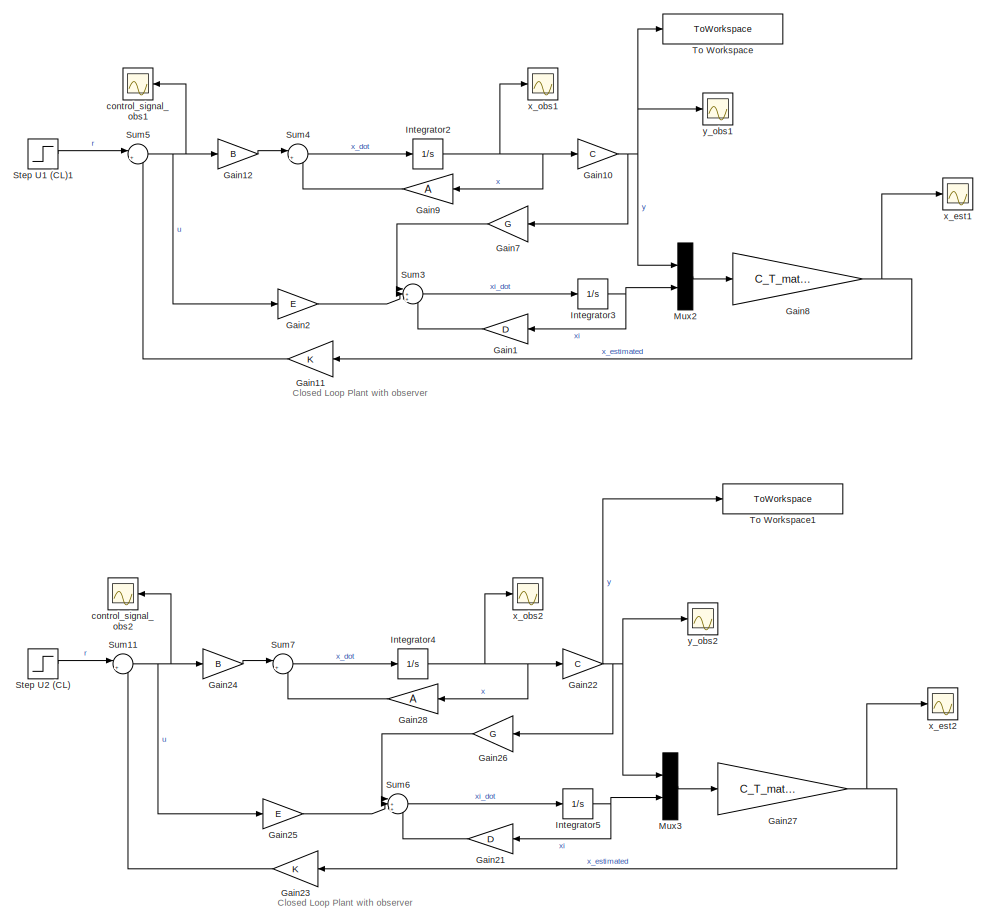
[diagram: root canvas - part 1/2, full width, top band]
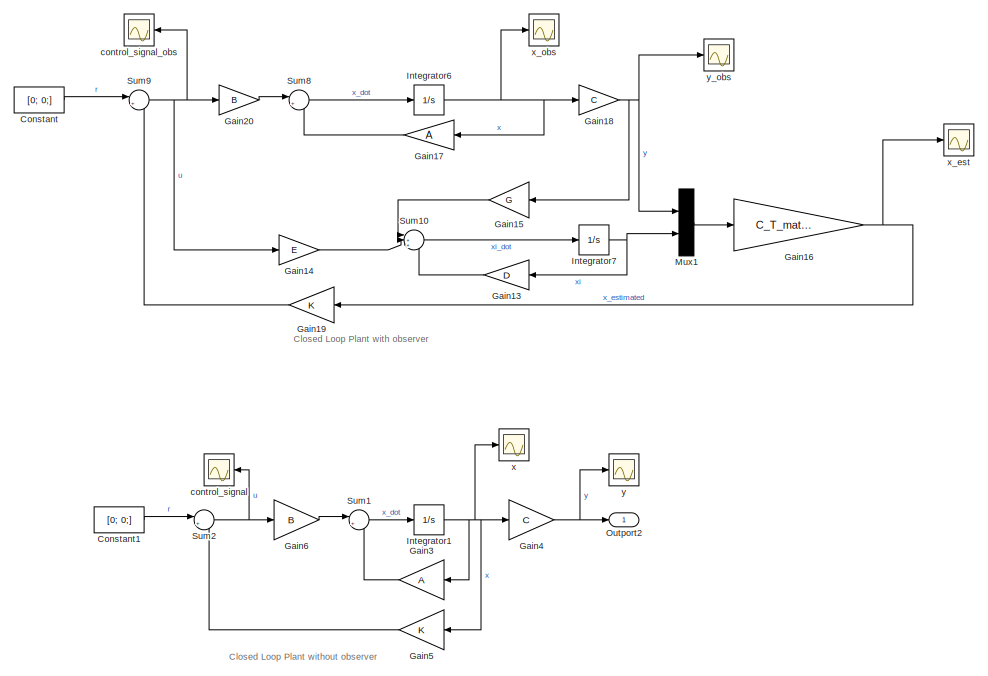
[diagram: root canvas - part 2/2, full width, bottom band]
MODEL slx_fd762015afdd
KIND model
CONFIG AbsTol = auto
CONFIG EnableMultiTasking = off
CONFIG FixedStep = auto
CONFIG MaxStep = auto
CONFIG MinStep = auto
CONFIG RelTol = 1e-3
CONFIG SampleTimeConstraint = Unconstrained
CONFIG SolverName = VariableStepAuto
CONFIG StartTime = 0.0
CONFIG StopTime = 5
BLOCK [Constant] Constant
  Value = [0; 0;]
BLOCK [Constant] Constant1
  Value = [0; 0;]
BLOCK [Gain] Gain1
  Gain = D
  Multiplication = Matrix(K*u)
BLOCK [Gain] Gain10
  Gain = C
  Multiplication = Matrix(K*u)
BLOCK [Gain] Gain11
  Gain = K
  Multiplication = Matrix(K*u)
BLOCK [Gain] Gain12
  Gain = B
  Multiplication = Matrix(K*u)
BLOCK [Gain] Gain13
  Gain = D
  Multiplication = Matrix(K*u)
BLOCK [Gain] Gain14
  Gain = E
  Multiplication = Matrix(K*u)
BLOCK [Gain] Gain15
  Gain = G
  Multiplication = Matrix(K*u)
  NameLocation = top
BLOCK [Gain] Gain16
  Gain = C_T_matrix_inv
  Multiplication = Matrix(K*u)
BLOCK [Gain] Gain17
  Gain = A
  Multiplication = Matrix(K*u)
BLOCK [Gain] Gain18
  Gain = C
  Multiplication = Matrix(K*u)
BLOCK [Gain] Gain19
  Gain = K
  Multiplication = Matrix(K*u)
BLOCK [Gain] Gain2
  Gain = E
  Multiplication = Matrix(K*u)
BLOCK [Gain] Gain20
  Gain = B
  Multiplication = Matrix(K*u)
BLOCK [Gain] Gain21
  Gain = D
  Multiplication = Matrix(K*u)
BLOCK [Gain] Gain22
  Gain = C
  Multiplication = Matrix(K*u)
BLOCK [Gain] Gain23
  Gain = K
  Multiplication = Matrix(K*u)
BLOCK [Gain] Gain24
  Gain = B
  Multiplication = Matrix(K*u)
BLOCK [Gain] Gain25
  Gain = E
  Multiplication = Matrix(K*u)
BLOCK [Gain] Gain26
  Gain = G
  Multiplication = Matrix(K*u)
  NameLocation = top
BLOCK [Gain] Gain27
  Gain = C_T_matrix_inv
  Multiplication = Matrix(K*u)
BLOCK [Gain] Gain28
  Gain = A
  Multiplication = Matrix(K*u)
BLOCK [Gain] Gain3
  Gain = A
  Multiplication = Matrix(K*u)
BLOCK [Gain] Gain4
  Gain = C
  Multiplication = Matrix(K*u)
BLOCK [Gain] Gain5
  Gain = K
  Multiplication = Matrix(K*u)
BLOCK [Gain] Gain6
  Gain = B
  Multiplication = Matrix(K*u)
BLOCK [Gain] Gain7
  Gain = G
  Multiplication = Matrix(K*u)
  NameLocation = top
BLOCK [Gain] Gain8
  Gain = C_T_matrix_inv
  Multiplication = Matrix(K*u)
BLOCK [Gain] Gain9
  Gain = A
  Multiplication = Matrix(K*u)
BLOCK [Integrator] Integrator1
  InitialCondition = x_0
BLOCK [Integrator] Integrator2
BLOCK [Integrator] Integrator3
BLOCK [Integrator] Integrator4
BLOCK [Integrator] Integrator5
BLOCK [Integrator] Integrator6
  InitialCondition = x_0
BLOCK [Integrator] Integrator7
BLOCK [Mux] Mux1
  DisplayOption = signals
  Inputs = 2
BLOCK [Mux] Mux2
  DisplayOption = signals
  Inputs = 2
BLOCK [Mux] Mux3
  DisplayOption = signals
  Inputs = 2
BLOCK [Outport] Outport2
BLOCK [Step] Step U1 (CL)1
  After = [1; 0;];
  Before = [0; 0;];
  SampleTime = 0
  Time = 0
BLOCK [Step] Step U2 (CL)
  After = [0; 1;];
  Before = [0; 0;];
  SampleTime = 0
  Time = 0
BLOCK [Sum] Sum1
  Inputs = |++
BLOCK [Sum] Sum10
  Inputs = |+++
BLOCK [Sum] Sum11
  Inputs = |+-
BLOCK [Sum] Sum2
  Inputs = |+-
BLOCK [Sum] Sum3
  Inputs = |+++
BLOCK [Sum] Sum4
  Inputs = |++
BLOCK [Sum] Sum5
  Inputs = |+-
BLOCK [Sum] Sum6
  Inputs = |+++
BLOCK [Sum] Sum7
  Inputs = |++
BLOCK [Sum] Sum8
  Inputs = |++
BLOCK [Sum] Sum9
  Inputs = |+-
BLOCK [ToWorkspace] To Workspace
  FixptAsFi = on
  MaxDataPoints = inf
  SampleTime = -1
  SaveFormat = Timeseries
  VariableName = setpoint_response_u1
BLOCK [ToWorkspace] To Workspace1
  FixptAsFi = on
  MaxDataPoints = inf
  SampleTime = -1
  SaveFormat = Timeseries
  VariableName = setpoint_response_u2
BLOCK [Scope] control_signal
  Floating = off
  NumInputPorts = 1
  ScopeSpecificationString = Simulink.scopes.TimeScopeBlockCfg('CurrentConfiguration', extmgr.ConfigurationSet(extmgr.Configuration('Core','General UI',true),extmgr.Configuration('Core','Source UI',true),extmgr.Configuration('Sources','WiredSimulink',true),extmgr.Configuration('Visuals','Time Domain',true,'SerializedDisplays',{struct('MinYLimReal','-0.44033','MaxYLimReal','1.233','YLabelReal','','MinYLimMag','0.00000','MaxYLi...<+1364ch>
BLOCK [Scope] control_signal_obs
  Floating = off
  NumInputPorts = 1
  ScopeSpecificationString = Simulink.scopes.TimeScopeBlockCfg('CurrentConfiguration', extmgr.ConfigurationSet(extmgr.Configuration('Core','General UI',true),extmgr.Configuration('Core','Source UI',true),extmgr.Configuration('Sources','WiredSimulink',true,'DataLoggingVariableName','ScopeData4'),extmgr.Configuration('Visuals','Time Domain',true,'SerializedDisplays',{struct('MinYLimReal','-0.44033','MaxYLimReal','1.233','YLabel...<+1403ch>
BLOCK [Scope] control_signal_obs1
  Floating = off
  NumInputPorts = 1
  ScopeSpecificationString = Simulink.scopes.TimeScopeBlockCfg('CurrentConfiguration', extmgr.ConfigurationSet(extmgr.Configuration('Core','General UI',true),extmgr.Configuration('Core','Source UI',true),extmgr.Configuration('Sources','WiredSimulink',true,'DataLoggingVariableName','ScopeData2'),extmgr.Configuration('Visuals','Time Domain',true,'SerializedDisplays',{struct('MinYLimReal','-0.44033','MaxYLimReal','1.233','YLabel...<+1403ch>
BLOCK [Scope] control_signal_obs2
  Floating = off
  NumInputPorts = 1
  ScopeSpecificationString = Simulink.scopes.TimeScopeBlockCfg('CurrentConfiguration', extmgr.ConfigurationSet(extmgr.Configuration('Core','General UI',true),extmgr.Configuration('Core','Source UI',true),extmgr.Configuration('Sources','WiredSimulink',true,'DataLoggingVariableName','ScopeData6'),extmgr.Configuration('Visuals','Time Domain',true,'SerializedDisplays',{struct('MinYLimReal','-0.44033','MaxYLimReal','1.233','YLabel...<+1403ch>
BLOCK [Scope] x
  Floating = off
  NumInputPorts = 1
  ScopeSpecificationString = Simulink.scopes.TimeScopeBlockCfg('CurrentConfiguration', extmgr.ConfigurationSet(extmgr.Configuration('Core','General UI',true),extmgr.Configuration('Core','Source UI',true),extmgr.Configuration('Sources','WiredSimulink',true,'DataLoggingVariableName','ScopeData2'),extmgr.Configuration('Visuals','Time Domain',true,'SerializedDisplays',{struct('MinYLimReal','-1.21947','MaxYLimReal','0.69105','YLab...<+1892ch>
BLOCK [Scope] x_est
  Floating = off
  NumInputPorts = 1
  ScopeSpecificationString = Simulink.scopes.TimeScopeBlockCfg('CurrentConfiguration', extmgr.ConfigurationSet(extmgr.Configuration('Core','General UI',true),extmgr.Configuration('Core','Source UI',true),extmgr.Configuration('Sources','WiredSimulink',true,'DataLoggingVariableName','ScopeData1'),extmgr.Configuration('Visuals','Time Domain',true,'SerializedDisplays',{struct('MinYLimReal','-0.38362','MaxYLimReal','0.86256','YLab...<+1937ch>
BLOCK [Scope] x_est1
  Floating = off
  NumInputPorts = 1
  ScopeSpecificationString = Simulink.scopes.TimeScopeBlockCfg('CurrentConfiguration', extmgr.ConfigurationSet(extmgr.Configuration('Core','General UI',true),extmgr.Configuration('Core','Source UI',true),extmgr.Configuration('Sources','WiredSimulink',true,'DataLoggingVariableName','ScopeData3'),extmgr.Configuration('Visuals','Time Domain',true,'SerializedDisplays',{struct('MinYLimReal','-0.40113','MaxYLimReal','0.86451','YLab...<+1934ch>
BLOCK [Scope] x_est2
  Floating = off
  NumInputPorts = 1
  ScopeSpecificationString = Simulink.scopes.TimeScopeBlockCfg('CurrentConfiguration', extmgr.ConfigurationSet(extmgr.Configuration('Core','General UI',true),extmgr.Configuration('Core','Source UI',true),extmgr.Configuration('Sources','WiredSimulink',true,'DataLoggingVariableName','ScopeData7'),extmgr.Configuration('Visuals','Time Domain',true,'SerializedDisplays',{struct('MinYLimReal','-0.39177','MaxYLimReal','0.86347','YLab...<+1934ch>
BLOCK [Scope] x_obs
  Floating = off
  NumInputPorts = 1
  ScopeSpecificationString = Simulink.scopes.TimeScopeBlockCfg('CurrentConfiguration', extmgr.ConfigurationSet(extmgr.Configuration('Core','General UI',true),extmgr.Configuration('Core','Source UI',true),extmgr.Configuration('Sources','WiredSimulink',true,'DataLoggingVariableName','ScopeData5'),extmgr.Configuration('Visuals','Time Domain',true,'SerializedDisplays',{struct('MinYLimReal','-0.9625','MaxYLimReal','0.6625','YLabel...<+1889ch>
BLOCK [Scope] x_obs1
  Floating = off
  NumInputPorts = 1
  ScopeSpecificationString = Simulink.scopes.TimeScopeBlockCfg('CurrentConfiguration', extmgr.ConfigurationSet(extmgr.Configuration('Core','General UI',true),extmgr.Configuration('Core','Source UI',true),extmgr.Configuration('Sources','WiredSimulink',true,'DataLoggingVariableName','ScopeData4'),extmgr.Configuration('Visuals','Time Domain',true,'SerializedDisplays',{struct('MinYLimReal','-0.03154','MaxYLimReal','0.0396','YLabe...<+1888ch>
BLOCK [Scope] x_obs2
  Floating = off
  NumInputPorts = 1
  ScopeSpecificationString = Simulink.scopes.TimeScopeBlockCfg('CurrentConfiguration', extmgr.ConfigurationSet(extmgr.Configuration('Core','General UI',true),extmgr.Configuration('Core','Source UI',true),extmgr.Configuration('Sources','WiredSimulink',true,'DataLoggingVariableName','ScopeData8'),extmgr.Configuration('Visuals','Time Domain',true,'SerializedDisplays',{struct('MinYLimReal','-0.9625','MaxYLimReal','0.6625','YLabel...<+1886ch>
BLOCK [Scope] y
  Floating = off
  NumInputPorts = 1
  ScopeSpecificationString = Simulink.scopes.TimeScopeBlockCfg('CurrentConfiguration', extmgr.ConfigurationSet(extmgr.Configuration('Core','General UI',true),extmgr.Configuration('Core','Source UI',true),extmgr.Configuration('Sources','WiredSimulink',true,'DataLoggingVariableName','ScopeData1'),extmgr.Configuration('Visuals','Time Domain',true,'SerializedDisplays',{struct('MinYLimReal','-1.63648','MaxYLimReal','0.52572','YLab...<+1412ch>
BLOCK [Scope] y_obs
  Floating = off
  NumInputPorts = 1
  ScopeSpecificationString = Simulink.scopes.TimeScopeBlockCfg('CurrentConfiguration', extmgr.ConfigurationSet(extmgr.Configuration('Core','General UI',true),extmgr.Configuration('Core','Source UI',true),extmgr.Configuration('Sources','WiredSimulink',true,'DataLoggingVariableName','ScopeData3'),extmgr.Configuration('Visuals','Time Domain',true,'SerializedDisplays',{struct('MinYLimReal','-1.66973','MaxYLimReal','0.82498','YLab...<+1413ch>
BLOCK [Scope] y_obs1
  Floating = off
  NumInputPorts = 1
  ScopeSpecificationString = Simulink.scopes.TimeScopeBlockCfg('CurrentConfiguration', extmgr.ConfigurationSet(extmgr.Configuration('Core','General UI',true),extmgr.Configuration('Core','Source UI',true),extmgr.Configuration('Sources','WiredSimulink',true,'DataLoggingVariableName','ScopeData5'),extmgr.Configuration('Visuals','Time Domain',true,'SerializedDisplays',{struct('MinYLimReal','-0.02916','MaxYLimReal','0.0545','YLabe...<+1628ch>
BLOCK [Scope] y_obs2
  Floating = off
  NumInputPorts = 1
  ScopeSpecificationString = Simulink.scopes.TimeScopeBlockCfg('CurrentConfiguration', extmgr.ConfigurationSet(extmgr.Configuration('Core','General UI',true),extmgr.Configuration('Core','Source UI',true),extmgr.Configuration('Sources','WiredSimulink',true,'DataLoggingVariableName','ScopeData9'),extmgr.Configuration('Visuals','Time Domain',true,'SerializedDisplays',{struct('MinYLimReal','-0.00328','MaxYLimReal','0.02947','YLab...<+1632ch>
ANNOTATION (root): Closed Loop Plant with observer
ANNOTATION (root): Closed Loop Plant without observer
LINE Constant1:1 -> Sum2:1
LINE Constant:1 -> Sum9:1
NET Gain10:1 -> Gain7:1, Mux2:1, To Workspace:1, y_obs1:1
LINE Gain11:1 -> Sum5:2
LINE Gain12:1 -> Sum4:1
LINE Gain13:1 -> Sum10:3
LINE Gain14:1 -> Sum10:2
LINE Gain15:1 -> Sum10:1
NET Gain16:1 -> Gain19:1, x_est:1
LINE Gain17:1 -> Sum8:2
NET Gain18:1 -> Gain15:1, Mux1:1, y_obs:1
LINE Gain19:1 -> Sum9:2
LINE Gain1:1 -> Sum3:3
LINE Gain20:1 -> Sum8:1
LINE Gain21:1 -> Sum6:3
NET Gain22:1 -> Gain26:1, Mux3:1, To Workspace1:1, y_obs2:1
LINE Gain23:1 -> Sum11:2
LINE Gain24:1 -> Sum7:1
LINE Gain25:1 -> Sum6:2
LINE Gain26:1 -> Sum6:1
NET Gain27:1 -> Gain23:1, x_est2:1
LINE Gain28:1 -> Sum7:2
LINE Gain2:1 -> Sum3:2
LINE Gain3:1 -> Sum1:2
NET Gain4:1 -> Outport2:1, y:1
LINE Gain5:1 -> Sum2:2
LINE Gain6:1 -> Sum1:1
LINE Gain7:1 -> Sum3:1
NET Gain8:1 -> Gain11:1, x_est1:1
LINE Gain9:1 -> Sum4:2
NET Integrator1:1 -> Gain3:1, Gain4:1, Gain5:1, x:1
NET Integrator2:1 -> Gain10:1, Gain9:1, x_obs1:1
NET Integrator3:1 -> Gain1:1, Mux2:2
NET Integrator4:1 -> Gain22:1, Gain28:1, x_obs2:1
NET Integrator5:1 -> Gain21:1, Mux3:2
NET Integrator6:1 -> Gain17:1, Gain18:1, x_obs:1
NET Integrator7:1 -> Gain13:1, Mux1:2
LINE Mux1:1 -> Gain16:1
LINE Mux2:1 -> Gain8:1
LINE Mux3:1 -> Gain27:1
LINE Step U1 (CL)1:1 -> Sum5:1
LINE Step U2 (CL):1 -> Sum11:1
LINE Sum10:1 -> Integrator7:1
NET Sum11:1 -> Gain24:1, Gain25:1, control_signal_obs2:1
LINE Sum1:1 -> Integrator1:1
NET Sum2:1 -> Gain6:1, control_signal:1
LINE Sum3:1 -> Integrator3:1
LINE Sum4:1 -> Integrator2:1
NET Sum5:1 -> Gain12:1, Gain2:1, control_signal_obs1:1
LINE Sum6:1 -> Integrator5:1
LINE Sum7:1 -> Integrator4:1
LINE Sum8:1 -> Integrator6:1
NET Sum9:1 -> Gain14:1, Gain20:1, control_signal_obs:1
note: NET lines group one-source signal fan-out (src -> all destinations, sorted); 1:1 wires keep LINE
